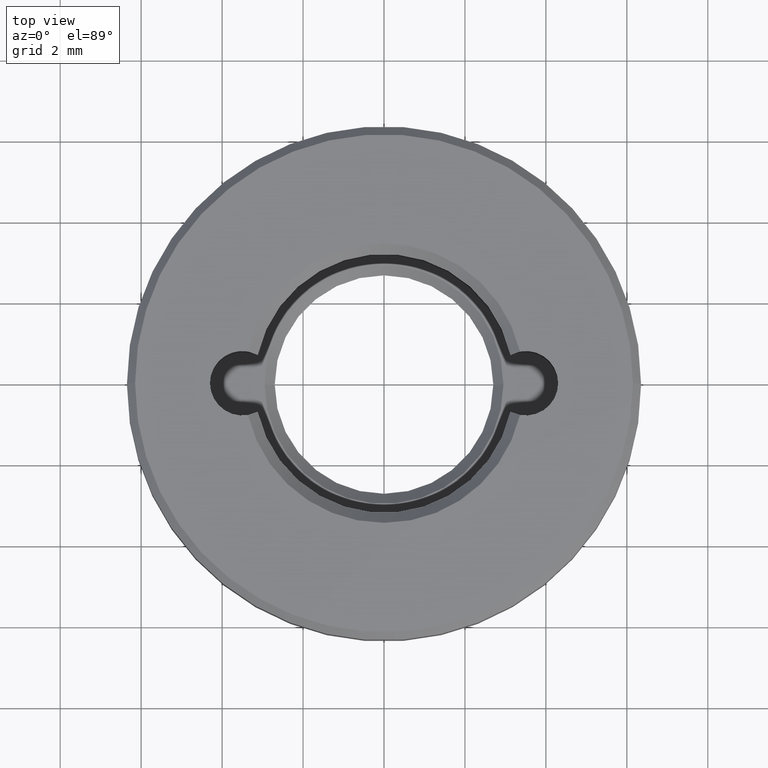
[diagram: clean part render]
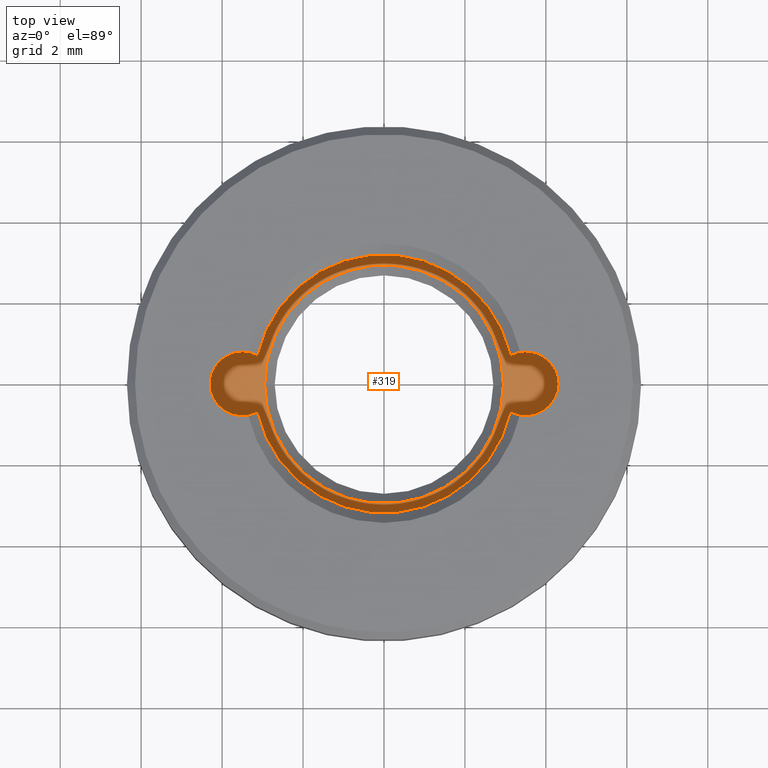
[diagram: same view with one face highlighted and labeled with its STEP entity id]
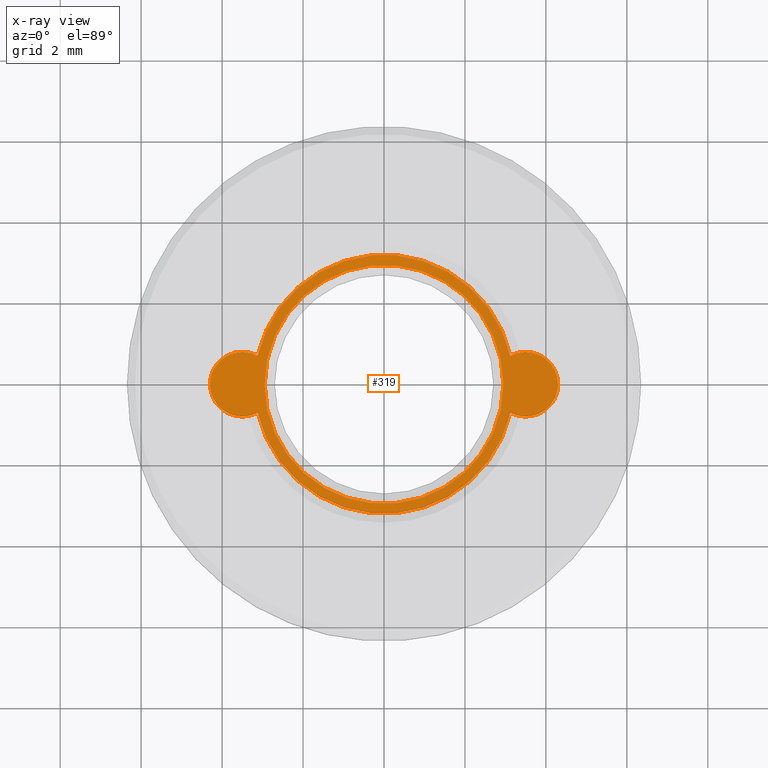
[diagram: x-ray of the same camera — body ghosted, the highlighted face saturated]
A machine part, top view. The second image highlights one B-rep face of the part: STEP entity #319.
The next image is the same camera in x-ray: the body ghosted, the highlighted face saturated — about 0% of this face is hidden behind the body in this view.
In plain terms, the highlighted planar face has unit normal (0, 0, 1).
Its self-contained STEP definition (entity closure, byte-faithful):
#20 = DIRECTION ( 'NONE',  ( 0.000000000000000000, 0.000000000000000000, 1.000000000000000000 ) ) ;
#27 = AXIS2_PLACEMENT_3D ( 'NONE', #255, #640, #263 ) ;
#32 = CARTESIAN_POINT ( 'NONE',  ( 3.500000000000000000, 4.286263797015736595E-16, 0.6000000000000003109 ) ) ;
#33 = VERTEX_POINT ( 'NONE', #567 ) ;
#45 = CARTESIAN_POINT ( 'NONE',  ( -3.121428571428571441, -0.7047578828714082810, 0.6000000000000003109 ) ) ;
#52 = DIRECTION ( 'NONE',  ( 1.000000000000000000, 0.000000000000000000, -0.000000000000000000 ) ) ;
#56 = AXIS2_PLACEMENT_3D ( 'NONE', #252, #422, #467 ) ;
#71 = CIRCLE ( 'NONE', #407, 2.949999999999997957 ) ;
#73 = CIRCLE ( 'NONE', #121, 3.200000000000000178 ) ;
#78 = EDGE_CURVE ( 'NONE', #186, #521, #288, .T. ) ;
#95 = DIRECTION ( 'NONE',  ( 1.000000000000000000, 0.000000000000000000, 0.000000000000000000 ) ) ;
#96 = VERTEX_POINT ( 'NONE', #198 ) ;
#108 = DIRECTION ( 'NONE',  ( 0.000000000000000000, 0.000000000000000000, 1.000000000000000000 ) ) ;
#116 = EDGE_LOOP ( 'NONE', ( #253, #131 ) ) ;
#121 = AXIS2_PLACEMENT_3D ( 'NONE', #356, #20, #452 ) ;
#123 = EDGE_CURVE ( 'NONE', #192, #96, #620, .T. ) ;
#131 = ORIENTED_EDGE ( 'NONE', *, *, #218, .T. ) ;
#150 = DIRECTION ( 'NONE',  ( 1.000000000000000000, 0.000000000000000000, 0.000000000000000000 ) ) ;
#167 = EDGE_CURVE ( 'NONE', #521, #96, #222, .T. ) ;
#175 = EDGE_CURVE ( 'NONE', #177, #33, #71, .T. ) ;
#177 = VERTEX_POINT ( 'NONE', #310 ) ;
#178 = DIRECTION ( 'NONE',  ( -0.000000000000000000, -0.000000000000000000, -1.000000000000000000 ) ) ;
#186 = VERTEX_POINT ( 'NONE', #533 ) ;
#192 = VERTEX_POINT ( 'NONE', #45 ) ;
#198 = CARTESIAN_POINT ( 'NONE',  ( 3.121428571428571441, -0.7047578828714075039, 0.6000000000000003109 ) ) ;
#218 = EDGE_CURVE ( 'NONE', #33, #177, #504, .T. ) ;
#222 = CIRCLE ( 'NONE', #27, 0.8000000000000008216 ) ;
#235 = CIRCLE ( 'NONE', #692, 0.8000000000000008216 ) ;
#249 = ORIENTED_EDGE ( 'NONE', *, *, #123, .T. ) ;
#252 = CARTESIAN_POINT ( 'NONE',  ( 0.000000000000000000, 0.000000000000000000, 0.6000000000000000888 ) ) ;
#253 = ORIENTED_EDGE ( 'NONE', *, *, #175, .T. ) ;
#255 = CARTESIAN_POINT ( 'NONE',  ( 3.500000000000000000, 4.286263797015736595E-16, 0.6000000000000003109 ) ) ;
#263 = DIRECTION ( 'NONE',  ( 1.000000000000000000, 0.000000000000000000, 0.000000000000000000 ) ) ;
#270 = CARTESIAN_POINT ( 'NONE',  ( 0.000000000000000000, 0.000000000000000000, 0.6000000000000000888 ) ) ;
#277 = DIRECTION ( 'NONE',  ( 1.000000000000000000, 0.000000000000000000, 0.000000000000000000 ) ) ;
#288 = CIRCLE ( 'NONE', #701, 0.8000000000000008216 ) ;
#310 = CARTESIAN_POINT ( 'NONE',  ( 2.949999999999997957, 0.000000000000000000, 0.6000000000000000888 ) ) ;
#319 = ADVANCED_FACE ( 'NONE', ( #654, #651 ), #387, .T. ) ;
#331 = ORIENTED_EDGE ( 'NONE', *, *, #78, .F. ) ;
#355 = ORIENTED_EDGE ( 'NONE', *, *, #410, .F. ) ;
#356 = CARTESIAN_POINT ( 'NONE',  ( 0.000000000000000000, 0.000000000000000000, 0.6000000000000000888 ) ) ;
#387 = PLANE ( 'NONE',  #450 ) ;
#394 = DIRECTION ( 'NONE',  ( -0.000000000000000000, -0.000000000000000000, -1.000000000000000000 ) ) ;
#396 = ORIENTED_EDGE ( 'NONE', *, *, #167, .F. ) ;
#401 = EDGE_CURVE ( 'NONE', #186, #681, #73, .T. ) ;
#407 = AXIS2_PLACEMENT_3D ( 'NONE', #581, #520, #95 ) ;
#410 = EDGE_CURVE ( 'NONE', #192, #681, #235, .T. ) ;
#422 = DIRECTION ( 'NONE',  ( 0.000000000000000000, 0.000000000000000000, 1.000000000000000000 ) ) ;
#450 = AXIS2_PLACEMENT_3D ( 'NONE', #270, #108, #52 ) ;
#452 = DIRECTION ( 'NONE',  ( 1.000000000000000000, 0.000000000000000000, 0.000000000000000000 ) ) ;
#459 = CARTESIAN_POINT ( 'NONE',  ( -3.500000000000000000, -4.286263797015736595E-16, 0.6000000000000003109 ) ) ;
#467 = DIRECTION ( 'NONE',  ( 1.000000000000000000, 0.000000000000000000, 0.000000000000000000 ) ) ;
#484 = AXIS2_PLACEMENT_3D ( 'NONE', #488, #394, #277 ) ;
#488 = CARTESIAN_POINT ( 'NONE',  ( 0.000000000000000000, 0.000000000000000000, 0.6000000000000000888 ) ) ;
#504 = CIRCLE ( 'NONE', #484, 2.949999999999997957 ) ;
#520 = DIRECTION ( 'NONE',  ( -0.000000000000000000, -0.000000000000000000, -1.000000000000000000 ) ) ;
#521 = VERTEX_POINT ( 'NONE', #606 ) ;
#524 = ORIENTED_EDGE ( 'NONE', *, *, #401, .T. ) ;
#533 = CARTESIAN_POINT ( 'NONE',  ( 3.121428571428571441, 0.7047578828714082810, 0.6000000000000003109 ) ) ;
#554 = DIRECTION ( 'NONE',  ( 1.000000000000000000, 0.000000000000000000, 0.000000000000000000 ) ) ;
#567 = CARTESIAN_POINT ( 'NONE',  ( -2.949999999999997957, 3.612708057484689139E-16, 0.6000000000000000888 ) ) ;
#571 = CARTESIAN_POINT ( 'NONE',  ( -3.121428571428571441, 0.7047578828714075039, 0.6000000000000003109 ) ) ;
#581 = CARTESIAN_POINT ( 'NONE',  ( 0.000000000000000000, 0.000000000000000000, 0.6000000000000000888 ) ) ;
#606 = CARTESIAN_POINT ( 'NONE',  ( 4.300000000000000711, 4.286263797015736595E-16, 0.6000000000000003109 ) ) ;
#620 = CIRCLE ( 'NONE', #56, 3.200000000000000178 ) ;
#640 = DIRECTION ( 'NONE',  ( -0.000000000000000000, -0.000000000000000000, -1.000000000000000000 ) ) ;
#651 = FACE_OUTER_BOUND ( 'NONE', #662, .T. ) ;
#654 = FACE_BOUND ( 'NONE', #116, .T. ) ;
#662 = EDGE_LOOP ( 'NONE', ( #249, #396, #331, #524, #355 ) ) ;
#681 = VERTEX_POINT ( 'NONE', #571 ) ;
#690 = DIRECTION ( 'NONE',  ( -0.000000000000000000, -0.000000000000000000, -1.000000000000000000 ) ) ;
#692 = AXIS2_PLACEMENT_3D ( 'NONE', #459, #178, #554 ) ;
#701 = AXIS2_PLACEMENT_3D ( 'NONE', #32, #690, #150 ) ;